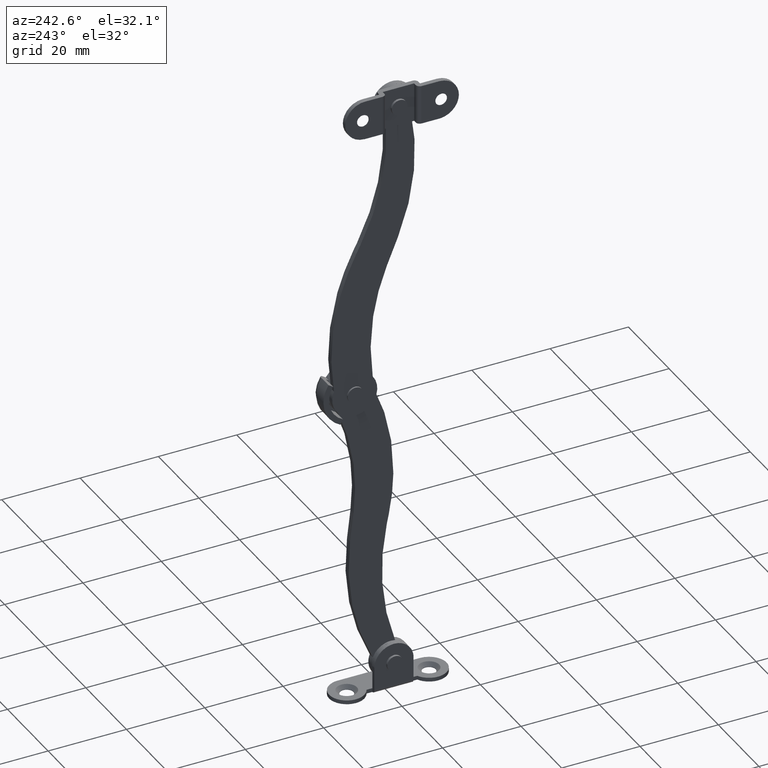
[diagram: clean part render]
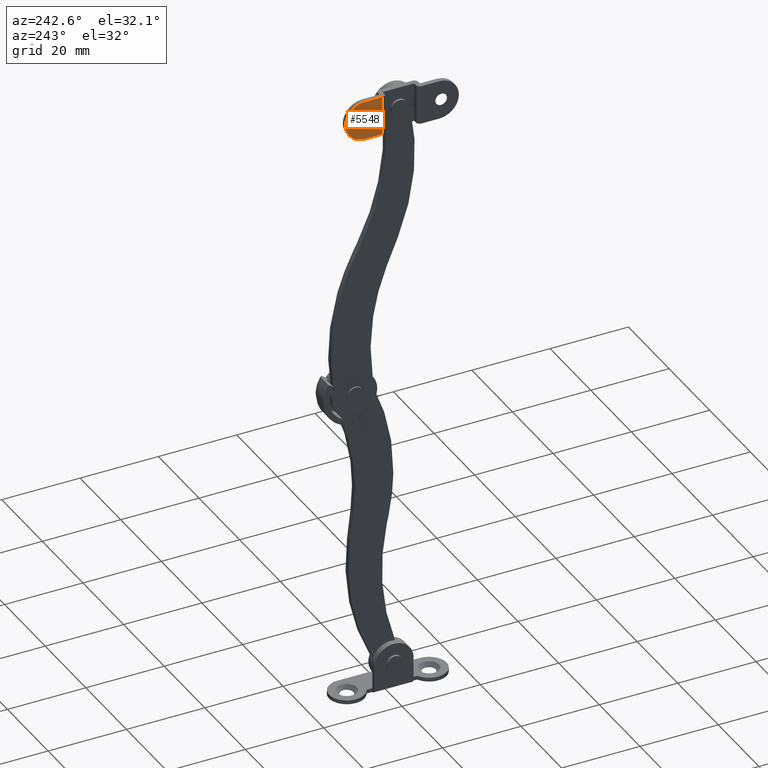
[diagram: same view with one face highlighted and labeled with its STEP entity id]
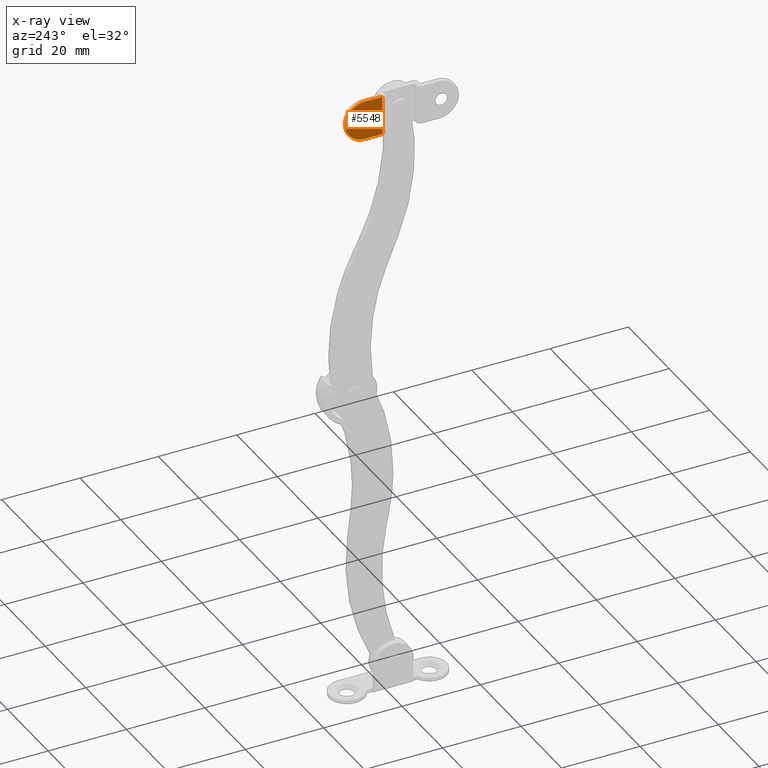
[diagram: x-ray of the same camera — body ghosted, the highlighted face saturated]
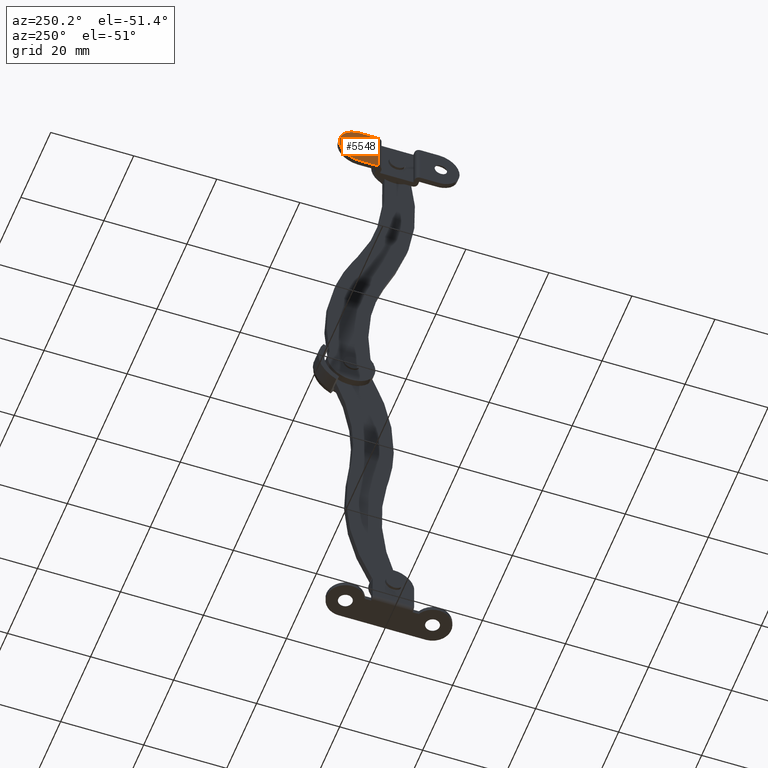
[diagram: same view with one face highlighted and labeled with its STEP entity id]
A machine part, auxiliary view. The second image highlights one B-rep face of the part: STEP entity #5548.
The next image is the same camera in x-ray: the body ghosted, the highlighted face saturated — about 0% of this face is hidden behind the body in this view.
A second angle (auxiliary view) of the same face is appended — the face is thin or edge-on in the first view.
In plain terms, the highlighted face is a freeform B-spline surface patch.
Its self-contained STEP definition (entity closure, byte-faithful):
#4189=CARTESIAN_POINT('',(2.392658E-018,9.472573038351040,76.404245368141844));
#4190=VERTEX_POINT('',#4189);
#4191=CARTESIAN_POINT('',(0.0,10.0,76.500029999999995));
#4192=VERTEX_POINT('',#4191);
#4193=CARTESIAN_POINT('',(2.392658E-018,9.472573038351040,76.404245368141844));
#4194=CARTESIAN_POINT('',(0.0,9.727588920831884,76.500029999999995));
#4195=CARTESIAN_POINT('',(0.0,10.0,76.500029999999995));
#4203=(BOUNDED_CURVE()B_SPLINE_CURVE(2,(#4193,#4194,#4195),.UNSPECIFIED.,.F.,.U.)B_SPLINE_CURVE_WITH_KNOTS((3,3),(0.940284170885051,1.0),.UNSPECIFIED.)CURVE()GEOMETRIC_REPRESENTATION_ITEM()RATIONAL_B_SPLINE_CURVE((0.893499554618806,0.930038554385634,1.0))REPRESENTATION_ITEM(''));
#4204=EDGE_CURVE('',#4190,#4192,#4203,.T.);
#4206=CARTESIAN_POINT('',(0.0,10.0,73.500029999999995));
#4207=VERTEX_POINT('',#4206);
#4208=CARTESIAN_POINT('',(0.0,10.0,76.500029999999995));
#4209=CARTESIAN_POINT('',(0.0,11.500000000000000,76.500029999999995));
#4210=CARTESIAN_POINT('',(0.0,11.500000000000000,75.000029999999995));
#4211=CARTESIAN_POINT('',(0.0,11.500000000000000,73.500029999999995));
#4212=CARTESIAN_POINT('',(0.0,10.0,73.500029999999995));
#4220=(BOUNDED_CURVE()B_SPLINE_CURVE(2,(#4208,#4209,#4210,#4211,#4212),.UNSPECIFIED.,.F.,.U.)B_SPLINE_CURVE_WITH_KNOTS((3,2,3),(0.0,0.250000000000000,0.500000000000000),.UNSPECIFIED.)CURVE()GEOMETRIC_REPRESENTATION_ITEM()RATIONAL_B_SPLINE_CURVE((1.0,0.707106781186548,1.0,0.707106781186548,1.0))REPRESENTATION_ITEM(''));
#4221=EDGE_CURVE('',#4192,#4207,#4220,.T.);
#4223=CARTESIAN_POINT('',(2.168404E-018,8.502797940904058,74.908454925696333));
#4224=VERTEX_POINT('',#4223);
#4225=CARTESIAN_POINT('',(0.0,10.0,73.500029999999995));
#4226=CARTESIAN_POINT('',(0.0,8.588943038311324,73.500029999999995));
#4227=CARTESIAN_POINT('',(2.168404E-018,8.502797940904058,74.908454925696333));
#4235=(BOUNDED_CURVE()B_SPLINE_CURVE(2,(#4225,#4226,#4227),.UNSPECIFIED.,.F.,.U.)B_SPLINE_CURVE_WITH_KNOTS((3,3),(0.500000000000000,0.739332701209331),.UNSPECIFIED.)CURVE()GEOMETRIC_REPRESENTATION_ITEM()RATIONAL_B_SPLINE_CURVE((1.0,0.719604299101923,0.976071482231209))REPRESENTATION_ITEM(''));
#4236=EDGE_CURVE('',#4207,#4224,#4235,.T.);
#4333=CARTESIAN_POINT('',(2.168404E-018,8.502797940904058,74.908454925696333));
#4334=CARTESIAN_POINT('',(0.0,8.500000000000000,74.954199719375879));
#4335=CARTESIAN_POINT('',(0.0,8.500000000000000,75.000029999999995));
#4336=CARTESIAN_POINT('',(0.0,8.500000000000000,76.038944393444268));
#4337=CARTESIAN_POINT('',(2.392658E-018,9.472573038351040,76.404245368141844));
#4345=(BOUNDED_CURVE()B_SPLINE_CURVE(2,(#4333,#4334,#4335,#4336,#4337),.UNSPECIFIED.,.F.,.U.)B_SPLINE_CURVE_WITH_KNOTS((3,2,3),(0.739332701209328,0.750000000000000,0.940284170885052),.UNSPECIFIED.)CURVE()GEOMETRIC_REPRESENTATION_ITEM()RATIONAL_B_SPLINE_CURVE((0.976071482231204,0.987502482084621,1.0,0.777068226800913,0.893499554618807))REPRESENTATION_ITEM(''));
#4346=EDGE_CURVE('',#4224,#4190,#4345,.T.);
#4855=CARTESIAN_POINT('',(0.0,9.499999999999611,70.000030000000010));
#4856=VERTEX_POINT('',#4855);
#4862=CARTESIAN_POINT('',(0.0,9.499999999999611,80.000029999999995));
#4863=VERTEX_POINT('',#4862);
#4864=CARTESIAN_POINT('',(0.0,9.499999999999581,70.000029999999995));
#4865=CARTESIAN_POINT('',(0.0,14.499999999999575,70.000029999999995));
#4866=CARTESIAN_POINT('',(0.0,14.499999999999581,75.000029999999995));
#4867=CARTESIAN_POINT('',(0.0,14.499999999999575,80.000030000000010));
#4868=CARTESIAN_POINT('',(0.0,9.499999999999581,80.000029999999995));
#4876=(BOUNDED_CURVE()B_SPLINE_CURVE(2,(#4864,#4865,#4866,#4867,#4868),.UNSPECIFIED.,.F.,.U.)B_SPLINE_CURVE_WITH_KNOTS((3,2,3),(0.0,0.500000000000000,1.0),.UNSPECIFIED.)CURVE()GEOMETRIC_REPRESENTATION_ITEM()RATIONAL_B_SPLINE_CURVE((1.0,0.707106781186548,1.0,0.707106781186548,1.0))REPRESENTATION_ITEM(''));
#4877=EDGE_CURVE('',#4856,#4863,#4876,.T.);
#5201=CARTESIAN_POINT('',(2.220446E-016,5.021692374450650,80.000029999999995));
#5202=VERTEX_POINT('',#5201);
#5218=CARTESIAN_POINT('',(2.220446E-016,5.021692374450650,70.000030000000010));
#5219=VERTEX_POINT('',#5218);
#5220=CARTESIAN_POINT('',(2.220446E-016,5.021692374450650,70.000030000000010));
#5221=CARTESIAN_POINT('',(2.220446E-016,5.021692374450650,80.000029999999995));
#5222=QUASI_UNIFORM_CURVE('',1,(#5220,#5221),.UNSPECIFIED.,.F.,.U.);
#5223=EDGE_CURVE('',#5219,#5202,#5222,.T.);
#5408=CARTESIAN_POINT('',(2.220446E-016,5.021692374450650,80.000029999999995));
#5409=CARTESIAN_POINT('',(0.0,9.499999999999611,80.000029999999995));
#5410=QUASI_UNIFORM_CURVE('',1,(#5408,#5409),.UNSPECIFIED.,.F.,.U.);
#5411=EDGE_CURVE('',#5202,#4863,#5410,.T.);
#5469=CARTESIAN_POINT('',(2.220446E-016,5.021692374450650,70.000030000000010));
#5470=CARTESIAN_POINT('',(0.0,9.499999999999611,70.000030000000010));
#5471=QUASI_UNIFORM_CURVE('',1,(#5469,#5470),.UNSPECIFIED.,.F.,.U.);
#5472=EDGE_CURVE('',#5219,#4856,#5471,.T.);
#5531=CARTESIAN_POINT('',(0.0,4.548250837949736,80.499530508128103));
#5532=CARTESIAN_POINT('',(0.0,4.548250837949736,69.500530475348526));
#5533=CARTESIAN_POINT('',(0.0,14.973441705985310,80.499530508128103));
#5534=CARTESIAN_POINT('',(0.0,14.973441705985310,69.500530475348526));
#5535=B_SPLINE_SURFACE_WITH_KNOTS('',1,1,((#5531,#5533),(#5532,#5534)),.UNSPECIFIED.,.F.,.F.,.U.,(2,2),(2,2),(0.0,10.999000032779580),(0.0,10.425190868035569),.UNSPECIFIED.);
#5536=ORIENTED_EDGE('',*,*,#5411,.T.);
#5537=ORIENTED_EDGE('',*,*,#4877,.F.);
#5538=ORIENTED_EDGE('',*,*,#5472,.F.);
#5539=ORIENTED_EDGE('',*,*,#5223,.T.);
#5540=EDGE_LOOP('',(#5536,#5537,#5538,#5539));
#5541=FACE_OUTER_BOUND('',#5540,.T.);
#5542=ORIENTED_EDGE('',*,*,#4221,.F.);
#5543=ORIENTED_EDGE('',*,*,#4204,.F.);
#5544=ORIENTED_EDGE('',*,*,#4346,.F.);
#5545=ORIENTED_EDGE('',*,*,#4236,.F.);
#5546=EDGE_LOOP('',(#5542,#5543,#5544,#5545));
#5547=FACE_BOUND('',#5546,.T.);
#5548=ADVANCED_FACE('',(#5541,#5547),#5535,.F.);